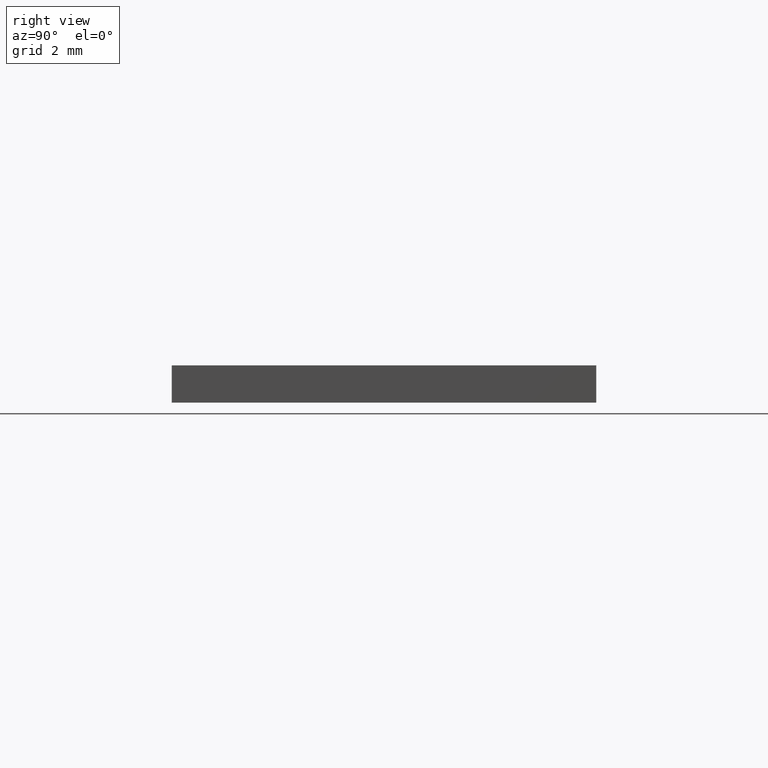
[diagram: clean part render]
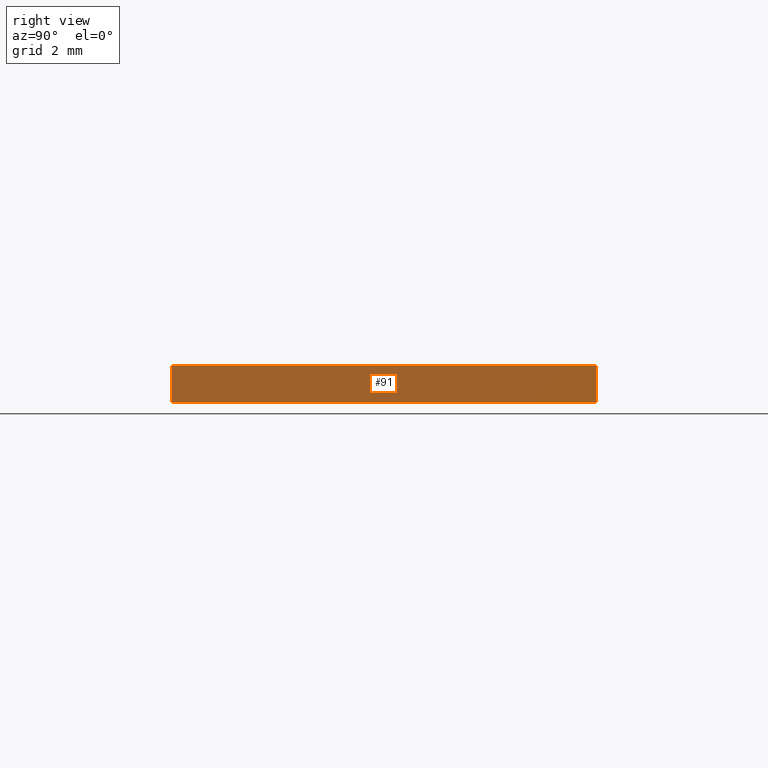
[diagram: same view with one face highlighted and labeled with its STEP entity id]
A machine part, right view. The second image highlights one B-rep face of the part: STEP entity #91.
In plain terms, the highlighted planar face has unit normal (-1, 0, 0).
Its self-contained STEP definition (entity closure, byte-faithful):
#2 = LINE ( 'NONE', #178, #188 ) ;
#3 = VERTEX_POINT ( 'NONE', #122 ) ;
#8 = EDGE_LOOP ( 'NONE', ( #86, #22, #103, #179 ) ) ;
#12 = CARTESIAN_POINT ( 'NONE',  ( 17.50000000000000000, 0.000000000000000000, 1.100000000000000089 ) ) ;
#15 = EDGE_CURVE ( 'NONE', #142, #144, #25, .T. ) ;
#22 = ORIENTED_EDGE ( 'NONE', *, *, #15, .F. ) ;
#25 = LINE ( 'NONE', #119, #202 ) ;
#29 = VECTOR ( 'NONE', #132, 1000.000000000000000 ) ;
#37 = DIRECTION ( 'NONE',  ( 0.000000000000000000, 1.000000000000000000, 0.000000000000000000 ) ) ;
#52 = CARTESIAN_POINT ( 'NONE',  ( 17.50000000000000000, 0.000000000000000000, 0.000000000000000000 ) ) ;
#64 = DIRECTION ( 'NONE',  ( -1.000000000000000000, 0.000000000000000000, 0.000000000000000000 ) ) ;
#65 = AXIS2_PLACEMENT_3D ( 'NONE', #12, #64, #126 ) ;
#68 = DIRECTION ( 'NONE',  ( -0.000000000000000000, -0.000000000000000000, -1.000000000000000000 ) ) ;
#86 = ORIENTED_EDGE ( 'NONE', *, *, #175, .T. ) ;
#90 = VECTOR ( 'NONE', #68, 1000.000000000000000 ) ;
#91 = ADVANCED_FACE ( 'NONE', ( #200 ), #156, .F. ) ;
#98 = CARTESIAN_POINT ( 'NONE',  ( 17.50000000000000000, 0.000000000000000000, 1.100000000000000089 ) ) ;
#102 = LINE ( 'NONE', #177, #29 ) ;
#103 = ORIENTED_EDGE ( 'NONE', *, *, #129, .F. ) ;
#115 = LINE ( 'NONE', #98, #90 ) ;
#119 = CARTESIAN_POINT ( 'NONE',  ( 17.50000000000000000, 12.50000000000000000, 1.100000000000000089 ) ) ;
#122 = CARTESIAN_POINT ( 'NONE',  ( 17.50000000000000000, 0.000000000000000000, 1.100000000000000089 ) ) ;
#123 = EDGE_CURVE ( 'NONE', #3, #164, #115, .T. ) ;
#126 = DIRECTION ( 'NONE',  ( 0.000000000000000000, 0.000000000000000000, 1.000000000000000000 ) ) ;
#129 = EDGE_CURVE ( 'NONE', #3, #142, #102, .T. ) ;
#132 = DIRECTION ( 'NONE',  ( 0.000000000000000000, 1.000000000000000000, 0.000000000000000000 ) ) ;
#142 = VERTEX_POINT ( 'NONE', #163 ) ;
#143 = CARTESIAN_POINT ( 'NONE',  ( 17.50000000000000000, 12.50000000000000000, 0.000000000000000000 ) ) ;
#144 = VERTEX_POINT ( 'NONE', #143 ) ;
#156 = PLANE ( 'NONE',  #65 ) ;
#163 = CARTESIAN_POINT ( 'NONE',  ( 17.50000000000000000, 12.50000000000000000, 1.100000000000000089 ) ) ;
#164 = VERTEX_POINT ( 'NONE', #52 ) ;
#175 = EDGE_CURVE ( 'NONE', #164, #144, #2, .T. ) ;
#177 = CARTESIAN_POINT ( 'NONE',  ( 17.50000000000000000, 0.000000000000000000, 1.100000000000000089 ) ) ;
#178 = CARTESIAN_POINT ( 'NONE',  ( 17.50000000000000000, 0.000000000000000000, 0.000000000000000000 ) ) ;
#179 = ORIENTED_EDGE ( 'NONE', *, *, #123, .T. ) ;
#184 = DIRECTION ( 'NONE',  ( -0.000000000000000000, -0.000000000000000000, -1.000000000000000000 ) ) ;
#188 = VECTOR ( 'NONE', #37, 1000.000000000000000 ) ;
#200 = FACE_OUTER_BOUND ( 'NONE', #8, .T. ) ;
#202 = VECTOR ( 'NONE', #184, 1000.000000000000000 ) ;